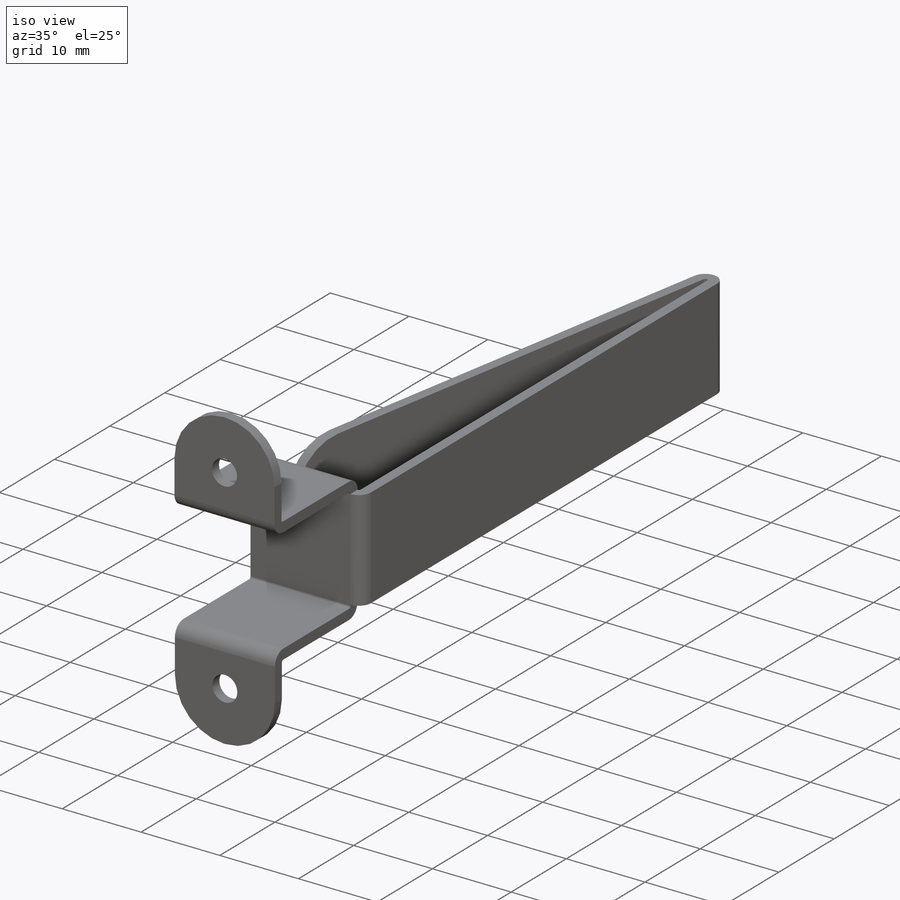
[diagram: iso view]
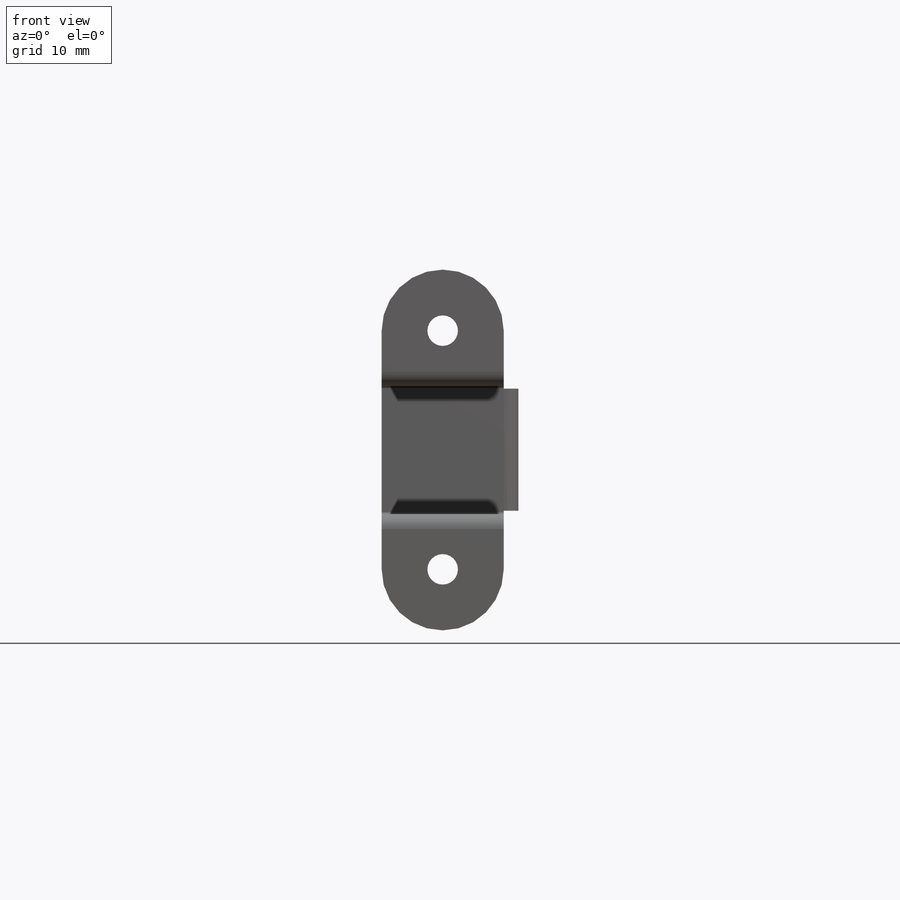
[diagram: front view]
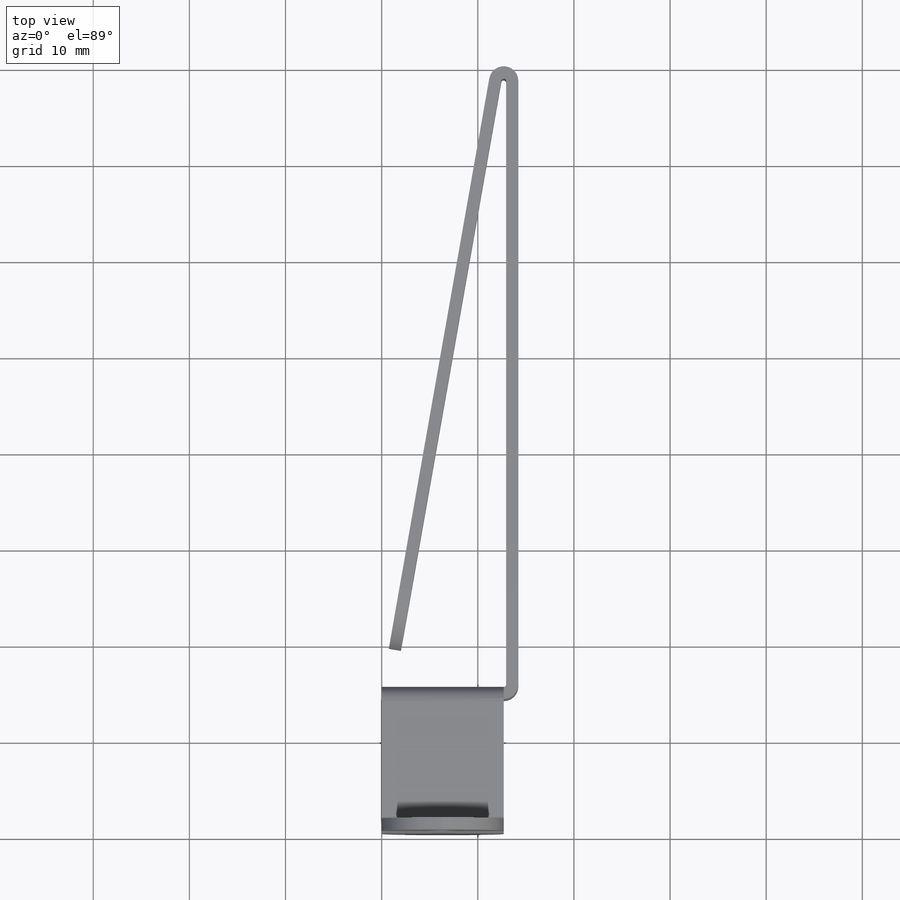
[diagram: top view]
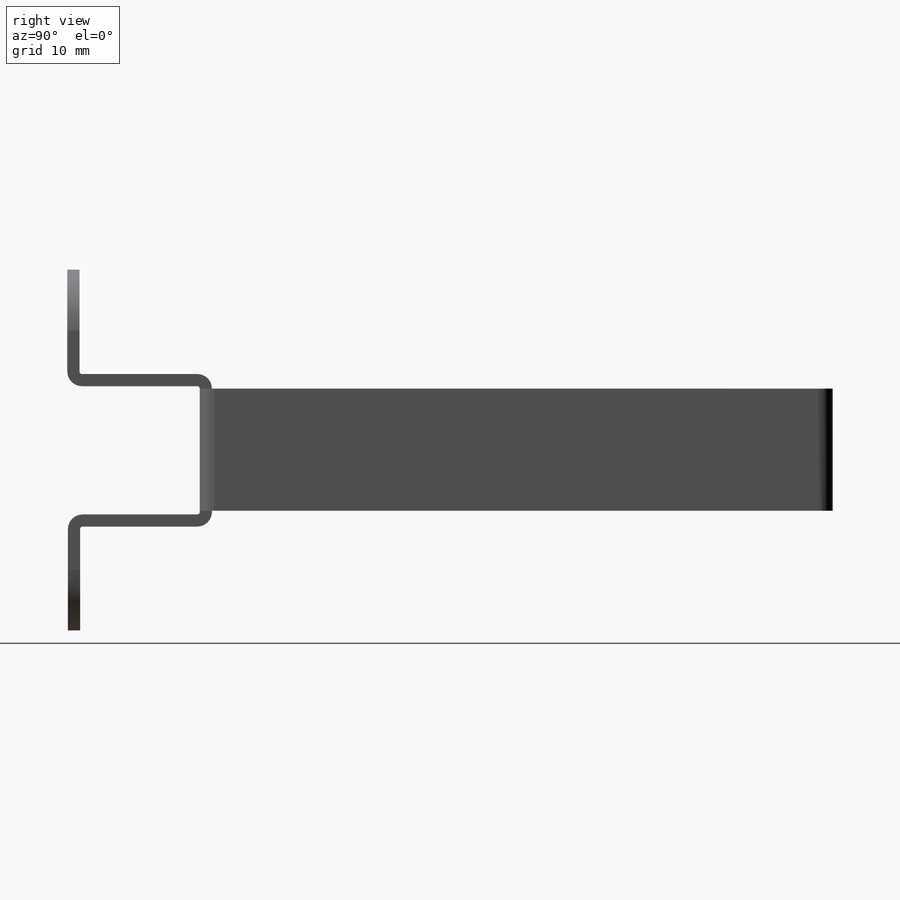
[diagram: right view]
SOLIDWORKS PART (.sldprt)
format: sldprt  version: not decoded by parser v0  size: 392,192 bytes
history: native  units: mm
features: sketch x14, sheet_metal_op x3, fillet x2, material x1, cut_extrude x1 + 17 further entries (+12 scaffold rows collapsed; 8 parser-record rows omitted)
feature tree (58):
  scaffold x12  (default folders/planes/origin — collapsed)
  material  "Material <not specified>"
  sketch  "Sketch1"  dims[c1.D1=25.4mm c1.D2=25.4mm c1.D3=12.7mm c1.D4=12.7mm c1.D5=127.0mm c1.D6=0.0mm c2.D1=0.7366mm c2.D2=0.5 c2.D3=0.0mm c2.D6=500.0mm]
  sheet_metal_op  "Base-Flange1"
  sketch  "Sketch13"  dims[c1.D1=3.175mm c1.D2=3.175mm c1.D3=3.175mm c1.D4=3.175mm c2.D1=~51.689199mm c2.D2=6.35mm c2.D4=6.35mm]
  cut_extrude  "Cut-Extrude1"  Depth=2.54mm
  sketch  "Sketch6"
  parser-record x8  (decoder bookkeeping rows leaked as tree rows — omitted from the tree; the rows remain in map.json)
  sketch  "Sketch7"  dims[Sketched Bend4=0.0]
  "SketchBend4"
  sketch  "Sketch9"  dims[Sketched Bend10=0.0]
  "SketchBend10"
  sketch  "Sketch10"  dims[Sketched Bend11=0.0]
  "SketchBend11"
  sketch  "Sketch11"  dims[Sketched Bend13=0.0]
  "SketchBend13"
  sketch  "Sketch12"  dims[Sketched Bend14=0.0]
  "SketchBend14"
  fillet  "Fillet1"  Radius=6.35mm
  sketch  "Bend-Lines1"
  sketch  "Bounding-Box1"
  sheet_metal_op  "Sheet-Metal(1)"
  "Flat-Pattern(1)"
  sketch  "Bend-Lines2"
  sketch  "Bounding-Box2"
  "Flatten-<SketchBend4>1"
  "Flatten-<SketchBend10>1"
  "Flatten-<SketchBend11>1"
  "Flatten-<SketchBend13>1"
  "Flatten-<SketchBend14>1"
  fillet  "Sheet-Metal(2)"  Radius=0.7366mm
  sheet_metal_op  "Flat-Pattern(1)"
  sketch  "Bend-Lines3"
  sketch  "Bounding-Box3"
  "Flatten-<SketchBend3>2"
  "Flatten-<SketchBend4>2"
  "Flatten-<SketchBend10>2"
  "Flatten-<SketchBend11>2"
  "Flatten-<SketchBend13>2"
  "Flatten-<SketchBend14>2"
decode coverage: 10 of 20 modeling features carry decoded parameters; 17 rows unclassified (native names shown)
note: ~ marks probable driven/reference dimensions
note: suppression state not decoded; provenance and decode notes live in map.json
